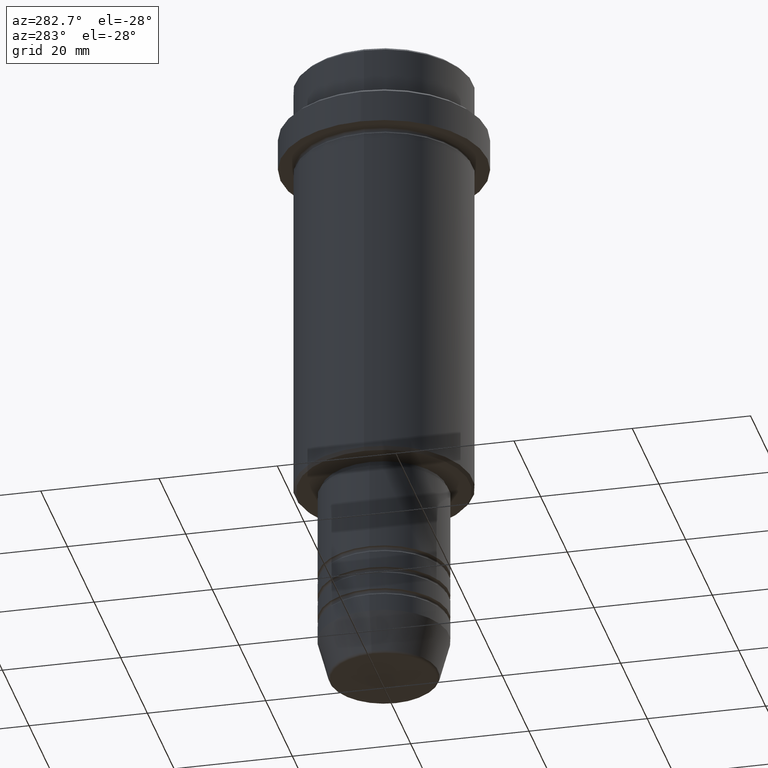
[diagram: clean part render]
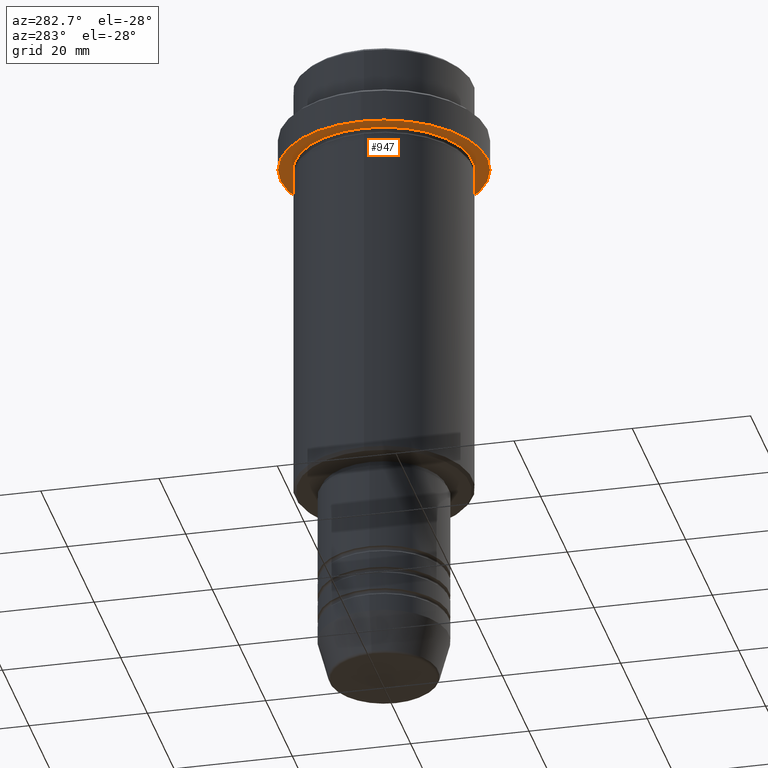
[diagram: same view with one face highlighted and labeled with its STEP entity id]
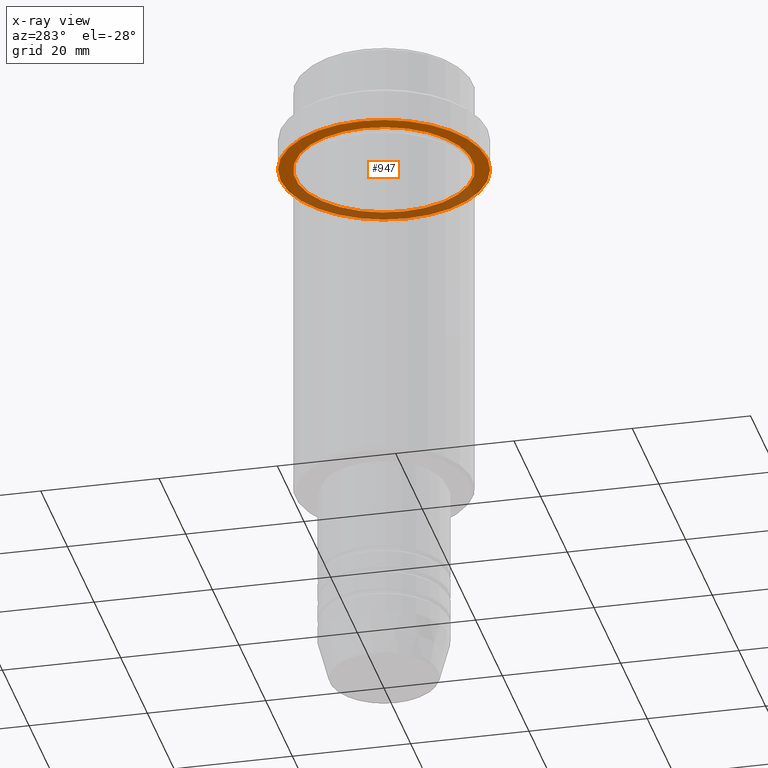
[diagram: x-ray of the same camera — body ghosted, the highlighted face saturated]
A machine part, auxiliary view. The second image highlights one B-rep face of the part: STEP entity #947.
The next image is the same camera in x-ray: the body ghosted, the highlighted face saturated — about 35% of this face is hidden behind the body in this view.
In plain terms, the highlighted planar face has unit normal (0, 0, -1).
Its self-contained STEP definition (entity closure, byte-faithful):
#23 = AXIS2_PLACEMENT_3D ( 'NONE', #936, #474, #255 ) ;
#24 = EDGE_CURVE ( 'NONE', #1381, #270, #1089, .T. ) ;
#81 = ORIENTED_EDGE ( 'NONE', *, *, #24, .T. ) ;
#104 = AXIS2_PLACEMENT_3D ( 'NONE', #1253, #1280, #1147 ) ;
#148 = CARTESIAN_POINT ( 'NONE',  ( 17.50000000000000000, 0.000000000000000000, -15.00000000000000000 ) ) ;
#166 = ORIENTED_EDGE ( 'NONE', *, *, #335, .T. ) ;
#218 = CARTESIAN_POINT ( 'NONE',  ( 0.000000000000000000, 0.000000000000000000, -15.00000000000000000 ) ) ;
#248 = DIRECTION ( 'NONE',  ( -1.000000000000000000, 0.000000000000000000, -0.000000000000000000 ) ) ;
#255 = DIRECTION ( 'NONE',  ( 1.000000000000000000, 0.000000000000000000, 0.000000000000000000 ) ) ;
#270 = VERTEX_POINT ( 'NONE', #276 ) ;
#276 = CARTESIAN_POINT ( 'NONE',  ( -14.99999999999999467, 0.000000000000000000, -15.00000000000000000 ) ) ;
#329 = VERTEX_POINT ( 'NONE', #863 ) ;
#335 = EDGE_CURVE ( 'NONE', #270, #1381, #1150, .T. ) ;
#366 = CARTESIAN_POINT ( 'NONE',  ( 14.99999999999999467, 1.836970198721029194E-15, -15.00000000000000000 ) ) ;
#431 = AXIS2_PLACEMENT_3D ( 'NONE', #218, #1092, #996 ) ;
#474 = DIRECTION ( 'NONE',  ( -0.000000000000000000, -0.000000000000000000, 1.000000000000000000 ) ) ;
#506 = EDGE_CURVE ( 'NONE', #329, #568, #707, .T. ) ;
#568 = VERTEX_POINT ( 'NONE', #148 ) ;
#663 = AXIS2_PLACEMENT_3D ( 'NONE', #1323, #1104, #930 ) ;
#685 = FACE_BOUND ( 'NONE', #928, .T. ) ;
#707 = CIRCLE ( 'NONE', #23, 17.50000000000000000 ) ;
#771 = ORIENTED_EDGE ( 'NONE', *, *, #506, .F. ) ;
#780 = ORIENTED_EDGE ( 'NONE', *, *, #904, .F. ) ;
#793 = CARTESIAN_POINT ( 'NONE',  ( 0.000000000000000000, 17.50000000000000000, -15.00000000000000000 ) ) ;
#801 = PLANE ( 'NONE',  #1198 ) ;
#863 = CARTESIAN_POINT ( 'NONE',  ( -17.50000000000000000, 2.143131898507868248E-15, -15.00000000000000000 ) ) ;
#904 = EDGE_CURVE ( 'NONE', #568, #329, #1110, .T. ) ;
#928 = EDGE_LOOP ( 'NONE', ( #166, #81 ) ) ;
#930 = DIRECTION ( 'NONE',  ( 1.000000000000000000, 0.000000000000000000, 0.000000000000000000 ) ) ;
#935 = FACE_OUTER_BOUND ( 'NONE', #1211, .T. ) ;
#936 = CARTESIAN_POINT ( 'NONE',  ( 0.000000000000000000, 0.000000000000000000, -15.00000000000000000 ) ) ;
#947 = ADVANCED_FACE ( 'NONE', ( #685, #935 ), #801, .T. ) ;
#996 = DIRECTION ( 'NONE',  ( -1.000000000000000000, 0.000000000000000000, 0.000000000000000000 ) ) ;
#1089 = CIRCLE ( 'NONE', #431, 14.99999999999999467 ) ;
#1092 = DIRECTION ( 'NONE',  ( -0.000000000000000000, -0.000000000000000000, 1.000000000000000000 ) ) ;
#1104 = DIRECTION ( 'NONE',  ( -0.000000000000000000, -0.000000000000000000, 1.000000000000000000 ) ) ;
#1110 = CIRCLE ( 'NONE', #663, 17.50000000000000000 ) ;
#1147 = DIRECTION ( 'NONE',  ( -1.000000000000000000, 0.000000000000000000, 0.000000000000000000 ) ) ;
#1150 = CIRCLE ( 'NONE', #104, 14.99999999999999467 ) ;
#1198 = AXIS2_PLACEMENT_3D ( 'NONE', #793, #1223, #248 ) ;
#1211 = EDGE_LOOP ( 'NONE', ( #780, #771 ) ) ;
#1223 = DIRECTION ( 'NONE',  ( 0.000000000000000000, 0.000000000000000000, -1.000000000000000000 ) ) ;
#1253 = CARTESIAN_POINT ( 'NONE',  ( 0.000000000000000000, 0.000000000000000000, -15.00000000000000000 ) ) ;
#1280 = DIRECTION ( 'NONE',  ( -0.000000000000000000, -0.000000000000000000, 1.000000000000000000 ) ) ;
#1323 = CARTESIAN_POINT ( 'NONE',  ( 0.000000000000000000, 0.000000000000000000, -15.00000000000000000 ) ) ;
#1381 = VERTEX_POINT ( 'NONE', #366 ) ;